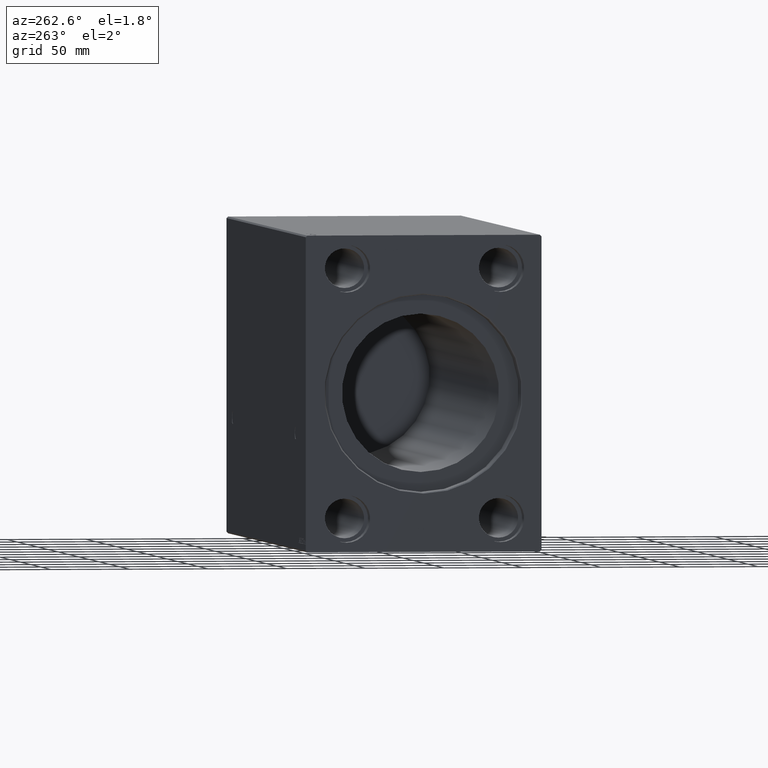
[diagram: clean part render]
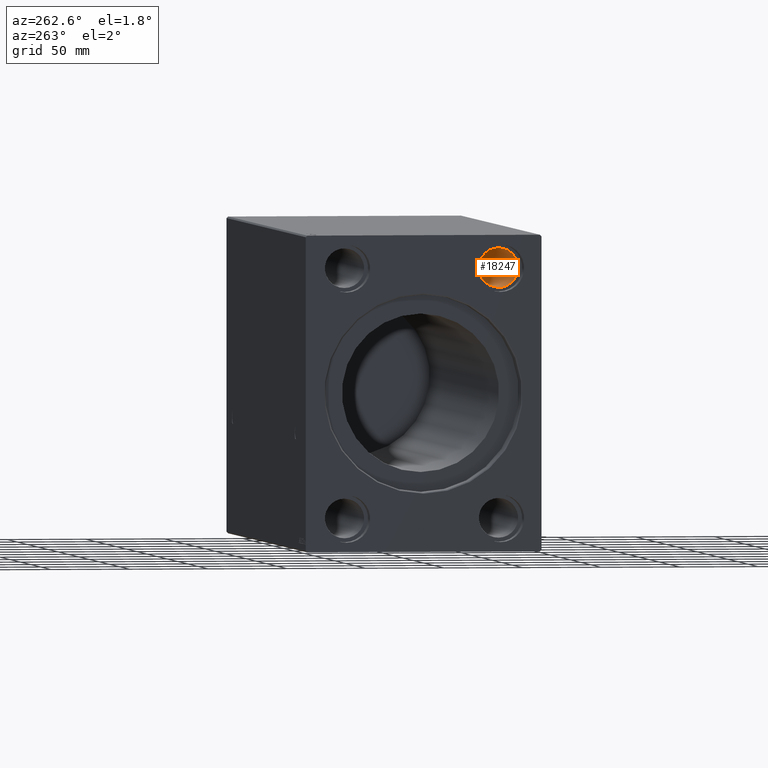
[diagram: same view with one face highlighted and labeled with its STEP entity id]
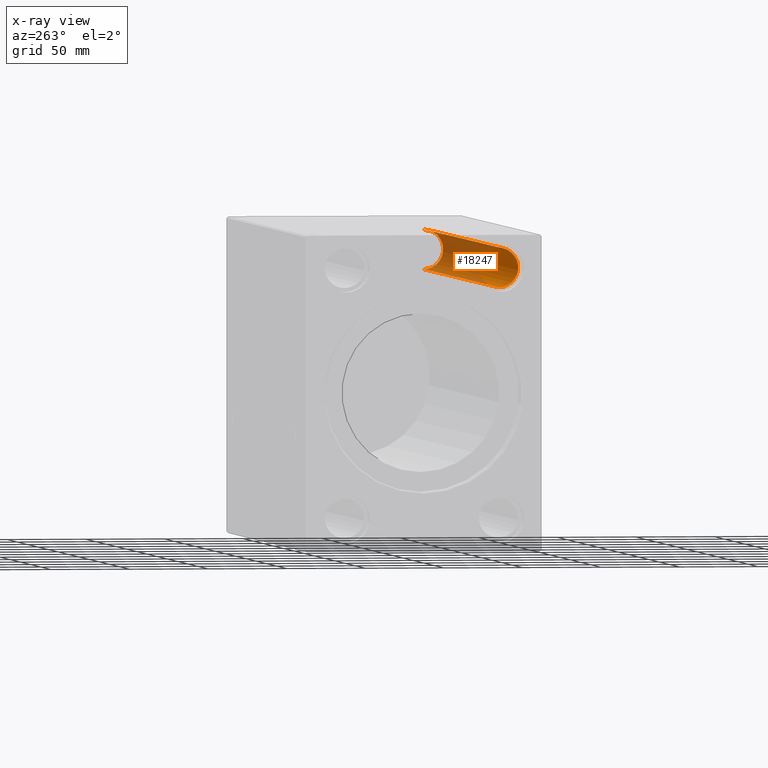
[diagram: x-ray of the same camera — body ghosted, the highlighted face saturated]
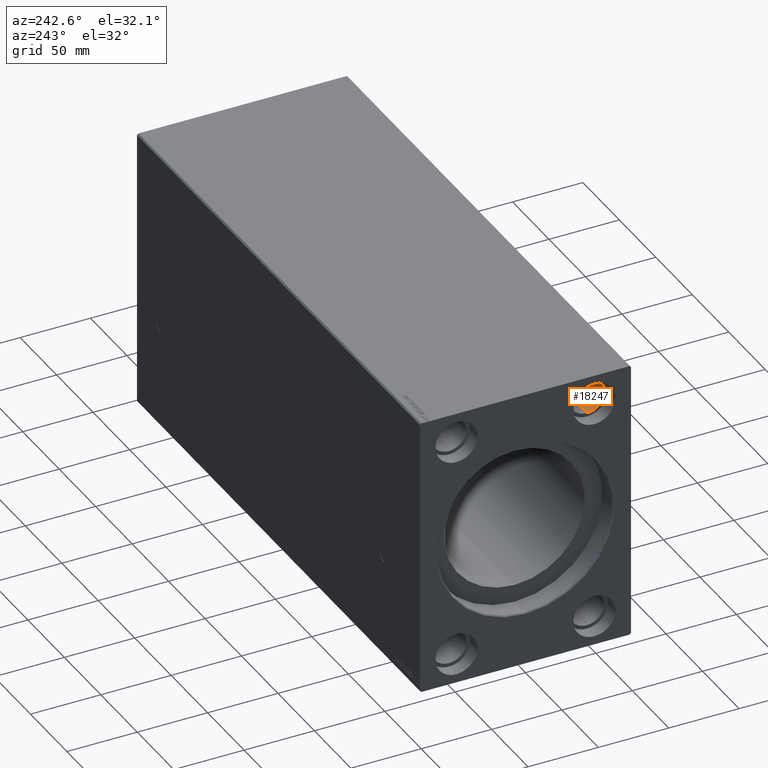
[diagram: same view with one face highlighted and labeled with its STEP entity id]
A machine part, auxiliary view. The second image highlights one B-rep face of the part: STEP entity #18247.
The next image is the same camera in x-ray: the body ghosted, the highlighted face saturated — about 60% of this face is hidden behind the body in this view.
A second angle (auxiliary view) of the same face is appended — the face is thin or edge-on in the first view.
In plain terms, the highlighted cylindrical surface (edge-blend (fillet) strip) has radius 12.5 mm, axis along (-1, -0, -0).
Its self-contained STEP definition (entity closure, byte-faithful):
#58 = CARTESIAN_POINT ( 'NONE',  ( 388.0000000000000000, -48.99999999999999289, 66.50000000000000000 ) ) ;
#796 = DIRECTION ( 'NONE',  ( 1.000000000000000000, 0.000000000000000000, 0.000000000000000000 ) ) ;
#1088 = LINE ( 'NONE', #11154, #41617 ) ;
#3424 = CIRCLE ( 'NONE', #37048, 12.50000000000001066 ) ;
#3874 = DIRECTION ( 'NONE',  ( 0.000000000000000000, 0.000000000000000000, 1.000000000000000000 ) ) ;
#3898 = LINE ( 'NONE', #58, #7506 ) ;
#4014 = CARTESIAN_POINT ( 'NONE',  ( 377.6700000000000159, -48.99999999999999289, 79.00000000000001421 ) ) ;
#6462 = CARTESIAN_POINT ( 'NONE',  ( 388.0000000000000000, -48.99999999999999289, 79.00000000000001421 ) ) ;
#7506 = VECTOR ( 'NONE', #36760, 1000.000000000000000 ) ;
#7725 = CARTESIAN_POINT ( 'NONE',  ( 10.33000000000000540, -48.99999999999999289, 79.00000000000001421 ) ) ;
#8310 = EDGE_LOOP ( 'NONE', ( #25006, #19899, #13348, #15413 ) ) ;
#10962 = DIRECTION ( 'NONE',  ( -1.000000000000000000, 0.000000000000000000, 0.000000000000000000 ) ) ;
#11154 = CARTESIAN_POINT ( 'NONE',  ( 388.0000000000000000, -48.99999999999999289, 91.50000000000002842 ) ) ;
#13348 = ORIENTED_EDGE ( 'NONE', *, *, #42409, .T. ) ;
#15413 = ORIENTED_EDGE ( 'NONE', *, *, #16166, .F. ) ;
#16166 = EDGE_CURVE ( 'NONE', #21884, #39115, #1088, .T. ) ;
#18035 = CARTESIAN_POINT ( 'NONE',  ( 377.6700000000000159, -48.99999999999999289, 66.50000000000000000 ) ) ;
#18247 = ADVANCED_FACE ( 'NONE', ( #23405 ), #32687, .F. ) ;
#19899 = ORIENTED_EDGE ( 'NONE', *, *, #30696, .T. ) ;
#21884 = VERTEX_POINT ( 'NONE', #31933 ) ;
#23405 = FACE_OUTER_BOUND ( 'NONE', #8310, .T. ) ;
#24252 = DIRECTION ( 'NONE',  ( -1.000000000000000000, -0.000000000000000000, -0.000000000000000000 ) ) ;
#24352 = AXIS2_PLACEMENT_3D ( 'NONE', #7725, #10962, #30504 ) ;
#25006 = ORIENTED_EDGE ( 'NONE', *, *, #31700, .T. ) ;
#29442 = DIRECTION ( 'NONE',  ( -1.000000000000000000, -0.000000000000000000, -0.000000000000000000 ) ) ;
#29629 = CARTESIAN_POINT ( 'NONE',  ( 10.33000000000000540, -48.99999999999999289, 66.50000000000000000 ) ) ;
#30504 = DIRECTION ( 'NONE',  ( 0.000000000000000000, 0.000000000000000000, 1.000000000000000000 ) ) ;
#30696 = EDGE_CURVE ( 'NONE', #42381, #36747, #3898, .T. ) ;
#31700 = EDGE_CURVE ( 'NONE', #21884, #42381, #3424, .T. ) ;
#31933 = CARTESIAN_POINT ( 'NONE',  ( 377.6700000000000159, -48.99999999999999289, 91.50000000000002842 ) ) ;
#32687 = CYLINDRICAL_SURFACE ( 'NONE', #40948, 12.50000000000001066 ) ;
#36747 = VERTEX_POINT ( 'NONE', #29629 ) ;
#36760 = DIRECTION ( 'NONE',  ( -1.000000000000000000, -0.000000000000000000, -0.000000000000000000 ) ) ;
#37048 = AXIS2_PLACEMENT_3D ( 'NONE', #4014, #796, #40099 ) ;
#37577 = CARTESIAN_POINT ( 'NONE',  ( 10.33000000000000540, -48.99999999999999289, 91.50000000000002842 ) ) ;
#39115 = VERTEX_POINT ( 'NONE', #37577 ) ;
#40099 = DIRECTION ( 'NONE',  ( 0.000000000000000000, 0.000000000000000000, -1.000000000000000000 ) ) ;
#40166 = CIRCLE ( 'NONE', #24352, 12.50000000000001066 ) ;
#40948 = AXIS2_PLACEMENT_3D ( 'NONE', #6462, #29442, #3874 ) ;
#41617 = VECTOR ( 'NONE', #24252, 1000.000000000000000 ) ;
#42381 = VERTEX_POINT ( 'NONE', #18035 ) ;
#42409 = EDGE_CURVE ( 'NONE', #36747, #39115, #40166, .T. ) ;